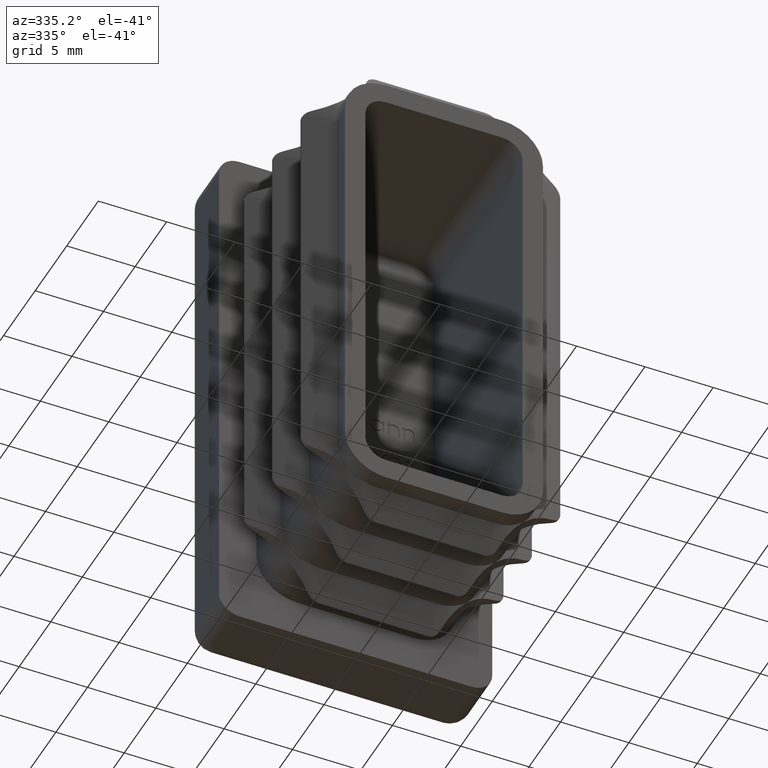
[diagram: clean part render]
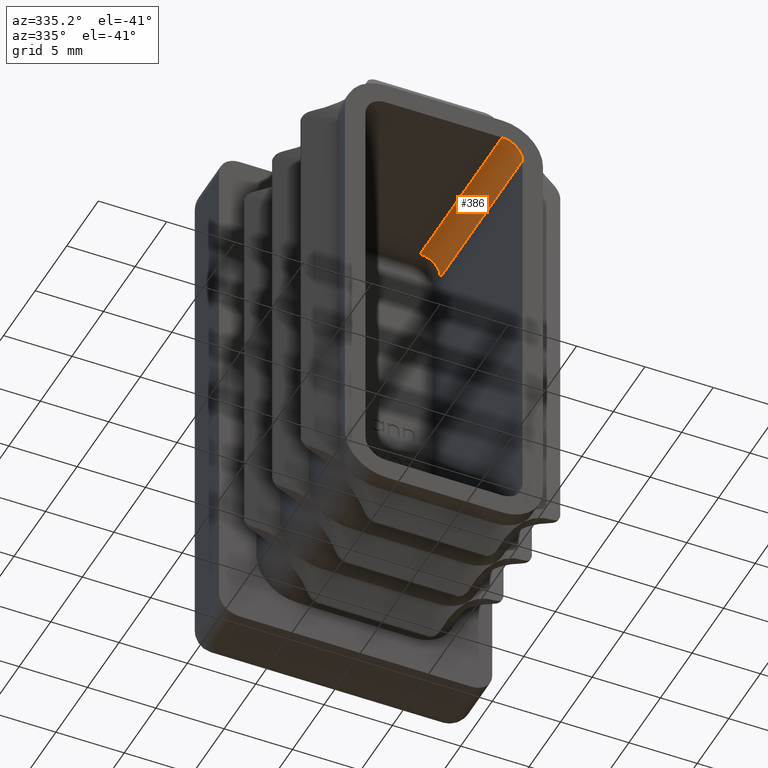
[diagram: same view with one face highlighted and labeled with its STEP entity id]
A machine part, auxiliary view. The second image highlights one B-rep face of the part: STEP entity #386.
In plain terms, the highlighted cylindrical surface (edge-blend (fillet) strip) has radius 1.5 mm, axis along (-0, 1, -0).
Its self-contained STEP definition (entity closure, byte-faithful):
#149 = CARTESIAN_POINT ( 'NONE',  ( 4.249999999999997335, -14.00000000000000000, 14.25000000000000000 ) ) ;
#231 = LINE ( 'NONE', #11306, #11486 ) ;
#386 = ADVANCED_FACE ( 'NONE', ( #2329 ), #7380, .F. ) ;
#1432 = DIRECTION ( 'NONE',  ( 0.000000000000000000, 0.000000000000000000, 1.000000000000000000 ) ) ;
#1441 = EDGE_LOOP ( 'NONE', ( #15007, #6799, #5247, #16884 ) ) ;
#1606 = DIRECTION ( 'NONE',  ( -0.000000000000000000, 1.000000000000000000, -0.000000000000000000 ) ) ;
#2163 = VERTEX_POINT ( 'NONE', #14793 ) ;
#2164 = LINE ( 'NONE', #14311, #11580 ) ;
#2329 = FACE_OUTER_BOUND ( 'NONE', #1441, .T. ) ;
#2480 = CIRCLE ( 'NONE', #3734, 1.499999999999999556 ) ;
#3734 = AXIS2_PLACEMENT_3D ( 'NONE', #14659, #18902, #8805 ) ;
#4221 = EDGE_CURVE ( 'NONE', #2163, #12770, #231, .T. ) ;
#5247 = ORIENTED_EDGE ( 'NONE', *, *, #4221, .F. ) ;
#5938 = EDGE_CURVE ( 'NONE', #2163, #14514, #2480, .T. ) ;
#6799 = ORIENTED_EDGE ( 'NONE', *, *, #9861, .T. ) ;
#7018 = CARTESIAN_POINT ( 'NONE',  ( 4.249999999999997335, -0.9999999999999991118, 14.25000000000000000 ) ) ;
#7380 = CYLINDRICAL_SURFACE ( 'NONE', #16660, 1.499999999999999556 ) ;
#7505 = DIRECTION ( 'NONE',  ( 0.000000000000000000, 0.000000000000000000, 1.000000000000000000 ) ) ;
#8364 = CIRCLE ( 'NONE', #12531, 1.499999999999999556 ) ;
#8570 = DIRECTION ( 'NONE',  ( 0.000000000000000000, 1.000000000000000000, 0.000000000000000000 ) ) ;
#8805 = DIRECTION ( 'NONE',  ( 0.000000000000000000, 0.000000000000000000, 1.000000000000000000 ) ) ;
#9326 = CARTESIAN_POINT ( 'NONE',  ( 4.249999999999997335, -14.00000000000000000, 15.75000000000000000 ) ) ;
#9861 = EDGE_CURVE ( 'NONE', #10075, #12770, #8364, .T. ) ;
#10075 = VERTEX_POINT ( 'NONE', #13262 ) ;
#10778 = EDGE_CURVE ( 'NONE', #14514, #10075, #2164, .T. ) ;
#11306 = CARTESIAN_POINT ( 'NONE',  ( 5.749999999999998224, -14.00000000000000000, 14.25000000000000178 ) ) ;
#11486 = VECTOR ( 'NONE', #14449, 1000.000000000000000 ) ;
#11580 = VECTOR ( 'NONE', #12771, 1000.000000000000000 ) ;
#12531 = AXIS2_PLACEMENT_3D ( 'NONE', #7018, #8570, #1432 ) ;
#12770 = VERTEX_POINT ( 'NONE', #16492 ) ;
#12771 = DIRECTION ( 'NONE',  ( -0.000000000000000000, 1.000000000000000000, -0.000000000000000000 ) ) ;
#13262 = CARTESIAN_POINT ( 'NONE',  ( 4.249999999999997335, -0.9999999999999991118, 15.75000000000000000 ) ) ;
#14311 = CARTESIAN_POINT ( 'NONE',  ( 4.249999999999997335, -14.00000000000000000, 15.75000000000000000 ) ) ;
#14449 = DIRECTION ( 'NONE',  ( -0.000000000000000000, 1.000000000000000000, -0.000000000000000000 ) ) ;
#14514 = VERTEX_POINT ( 'NONE', #9326 ) ;
#14659 = CARTESIAN_POINT ( 'NONE',  ( 4.249999999999997335, -14.00000000000000000, 14.25000000000000000 ) ) ;
#14793 = CARTESIAN_POINT ( 'NONE',  ( 5.749999999999998224, -14.00000000000000000, 14.25000000000000178 ) ) ;
#15007 = ORIENTED_EDGE ( 'NONE', *, *, #10778, .T. ) ;
#16492 = CARTESIAN_POINT ( 'NONE',  ( 5.749999999999998224, -0.9999999999999991118, 14.25000000000000178 ) ) ;
#16660 = AXIS2_PLACEMENT_3D ( 'NONE', #149, #1606, #7505 ) ;
#16884 = ORIENTED_EDGE ( 'NONE', *, *, #5938, .T. ) ;
#18902 = DIRECTION ( 'NONE',  ( 0.000000000000000000, -1.000000000000000000, 0.000000000000000000 ) ) ;